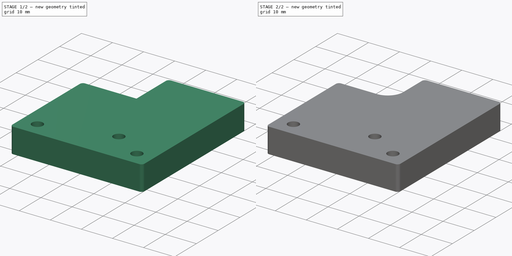
[diagram: build sequence overview — one tinted view per stage of 2, left to right]
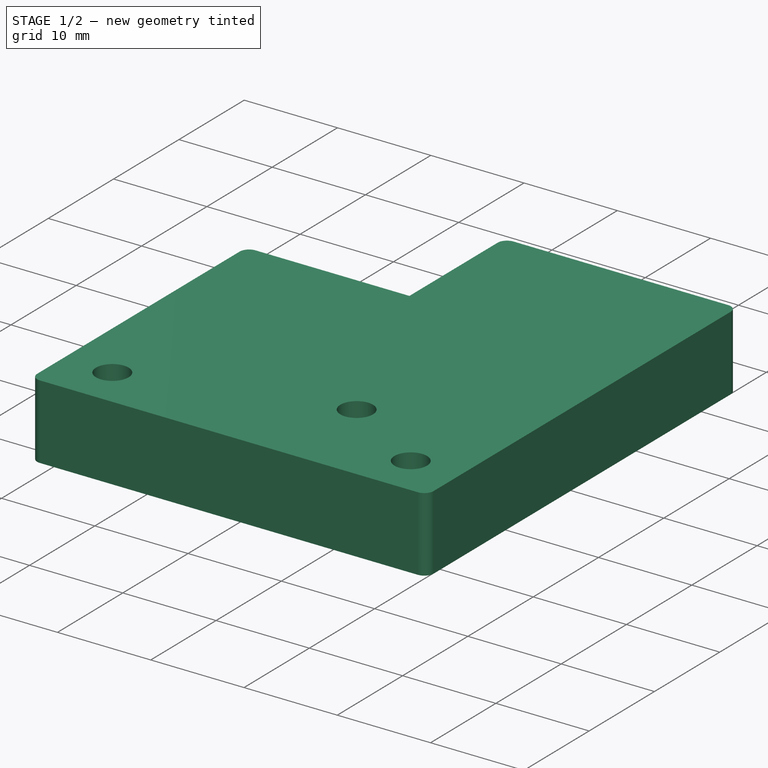
[diagram: stage 1 of 2 — iso view after this stage's code; geometry added in this stage tinted green]
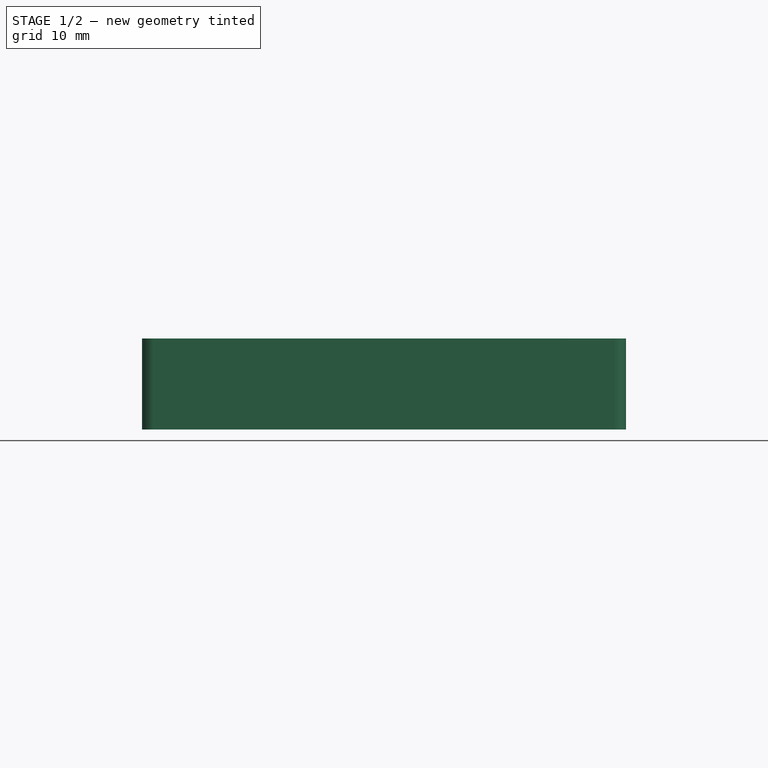
[diagram: stage 1 of 2 — front view after this stage's code; geometry added in this stage tinted green]
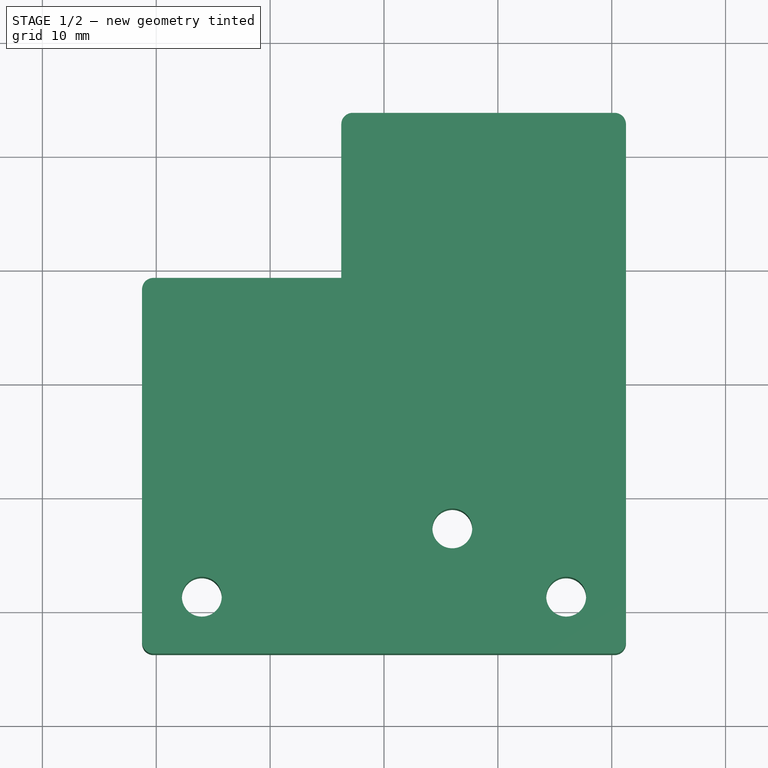
[diagram: stage 1 of 2 — top view after this stage's code; geometry added in this stage tinted green]
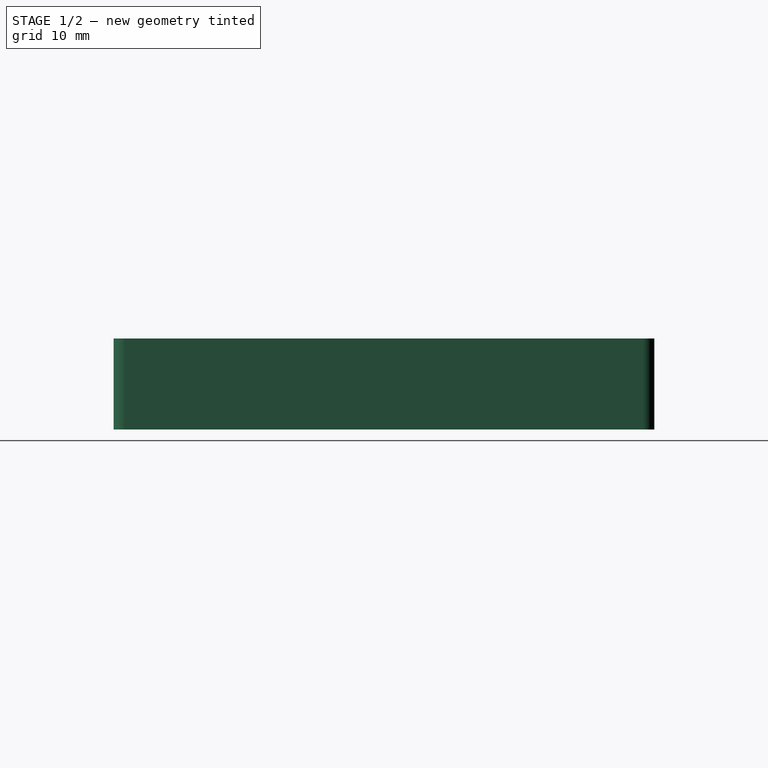
[diagram: stage 1 of 2 — right view after this stage's code; geometry added in this stage tinted green]
FCSTD DOCUMENT  (FreeCAD 0.14R3310 (Git))
Label: 86. TAPA EXTRUSER (DISIPADOR)
License: CC-BY 3.0
LicenseURL: http://creativecommons.org/licenses/by/3.0/
objects: PartDesign::Fillet×2, Sketcher::SketchObject×1, PartDesign::Pad×1
note: 5 computed .brp shape members not serialized (recipe doc carries the construction recipe); baked Part::Feature solids carry a one-line shape summary decoded from their .brp

FEATURE [Sketcher::SketchObject] Sketch
  sketch-geometry (11):
    g0: LineSegment [constr] StartX=-21.25 StartY=23.75 StartZ=0 EndX=21.25 EndY=23.75 EndZ=0
    g1: LineSegment StartX=21.25 StartY=23.75 StartZ=0 EndX=21.25 EndY=-23.75 EndZ=0
    g2: LineSegment StartX=21.25 StartY=-23.75 StartZ=0 EndX=-21.25 EndY=-23.75 EndZ=0
    g3: LineSegment [constr] StartX=-21.25 StartY=-23.75 StartZ=0 EndX=-21.25 EndY=23.75 EndZ=0
    g4: LineSegment StartX=-3.75 StartY=23.75 StartZ=0 EndX=-3.75 EndY=9.25 EndZ=0
    g5: LineSegment StartX=-21.25 StartY=9.25 StartZ=0 EndX=-3.75 EndY=9.25 EndZ=0
    g6: LineSegment StartX=-3.75 StartY=23.75 StartZ=0 EndX=21.25 EndY=23.75 EndZ=0
    g7: LineSegment StartX=-21.25 StartY=9.25 StartZ=0 EndX=-21.25 EndY=-23.75 EndZ=0
    g8: Circle CenterX=-16 CenterY=-18.75 CenterZ=0 NormalX=0 NormalY=0 NormalZ=1 Radius=1.75
    g9: Circle CenterX=16 CenterY=-18.75 CenterZ=0 NormalX=0 NormalY=0 NormalZ=1 Radius=1.75
    g10: Circle CenterX=6 CenterY=-12.75 CenterZ=0 NormalX=0 NormalY=0 NormalZ=1 Radius=1.75
  constraints (30):
    c: Coincident(g0,g1)
    c: Coincident(g1,g2)
    c: Coincident(g2,g3)
    c: Coincident(g3,g0)
    c: Horizontal(g0)
    c: Horizontal(g2)
    c: Vertical(g1)
    c: Vertical(g3)
    c: Symmetric(g1,g0,g-1)
    c: Distance(g0) = 42.5
    c: Distance(g1) = 47.5
    c: PointOnObject(g4,g0)
    c: Vertical(g4)
    c: PointOnObject(g5,g3)
    c: Coincident(g5,g4)
    c: Horizontal(g5)
    c: Distance(g5,g2) = 33
    c: Distance(g4,g1) = 25
    c: Coincident(g6,g4)
    c: Coincident(g6,g0)
    c: Coincident(g7,g5)
    c: Coincident(g7,g2)
    c: Symmetric(g8,g9,g-2)
    c: Equal(g9,g8)
    c: Radius(g8) = 1.75
    c: Distance(g8,g9) = 32
    c: Distance(g9,g2) = 5
    c: Equal(g10,g9)
    c: DistanceX(g-2,g10) = 6
    c: Distance(g10,g2) = 11
FEATURE [PartDesign::Pad] Pad
  Length = 8
  Length2 = 100
  Sketch = -> Sketch
  Type = 0
FEATURE [PartDesign::Fillet] Fillet
  Base = -> Pad [Edge1,Edge11,Edge2,Edge5,Edge8]
  Radius = 1
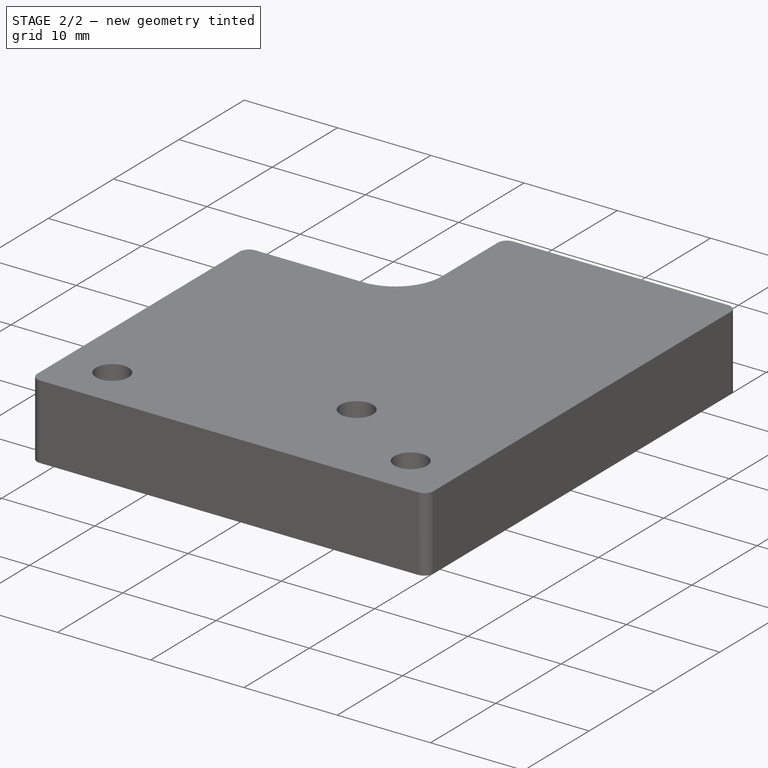
[diagram: stage 2 of 2 — iso view after this stage's code; geometry added in this stage tinted green]
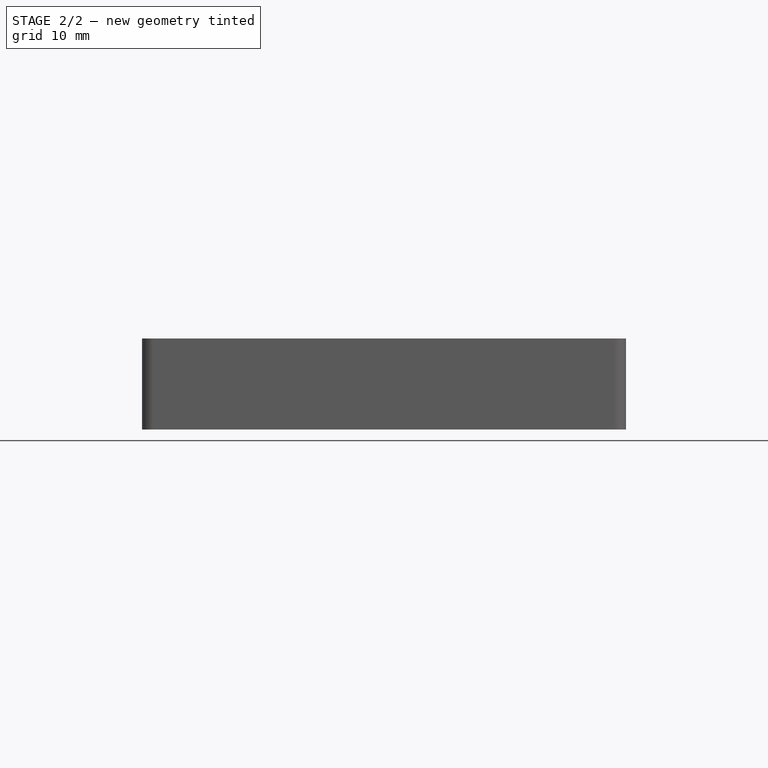
[diagram: stage 2 of 2 — front view after this stage's code; geometry added in this stage tinted green]
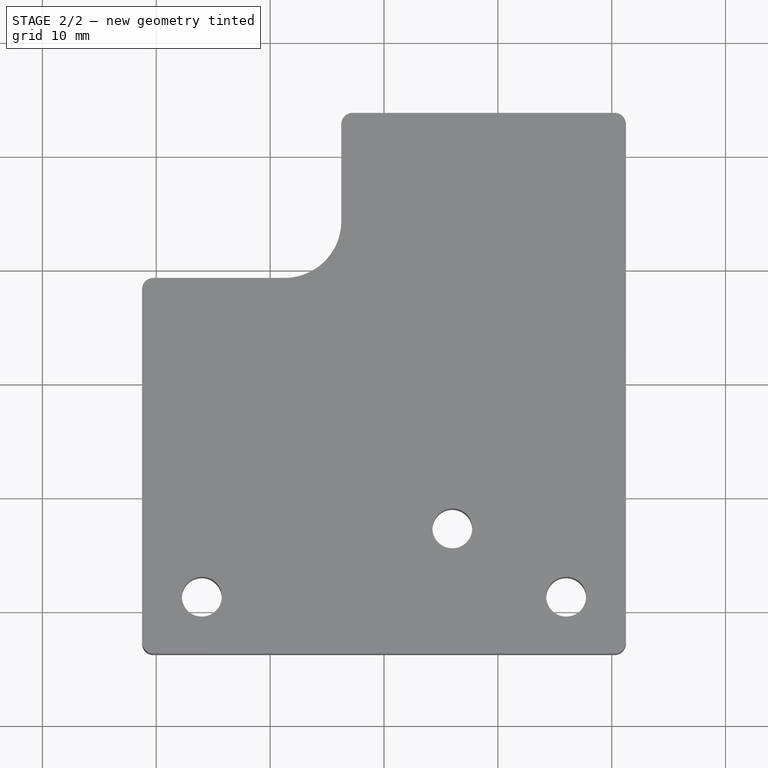
[diagram: stage 2 of 2 — top view after this stage's code; geometry added in this stage tinted green]
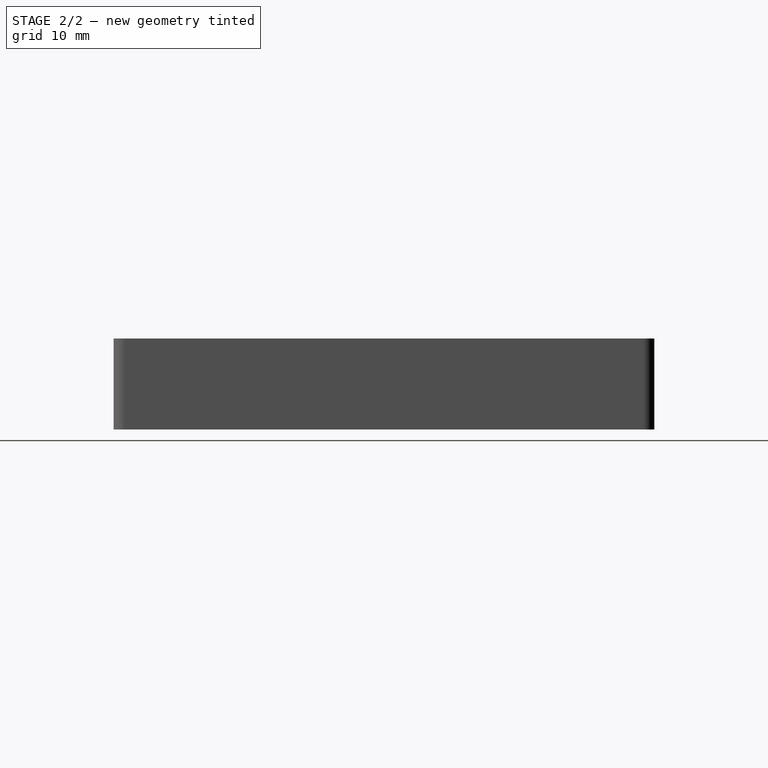
[diagram: stage 2 of 2 — right view after this stage's code; geometry added in this stage tinted green]
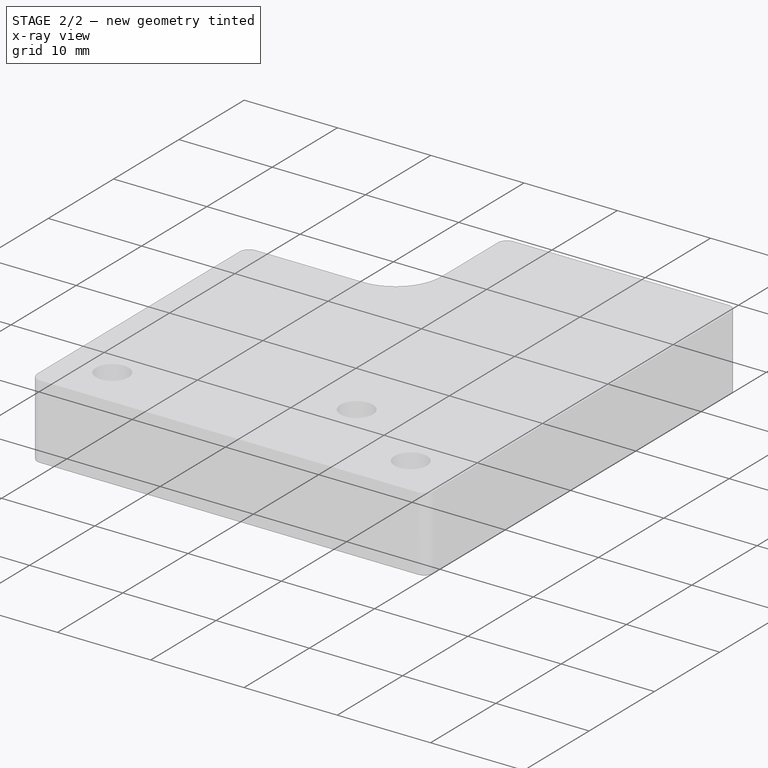
[diagram: stage 2 of 2 — x-ray composite at the iso view; earlier geometry ghosted, this stage's added geometry solid]
FEATURE [PartDesign::Fillet] Fillet001
  Base = -> Fillet [Edge33]
  Radius = 5
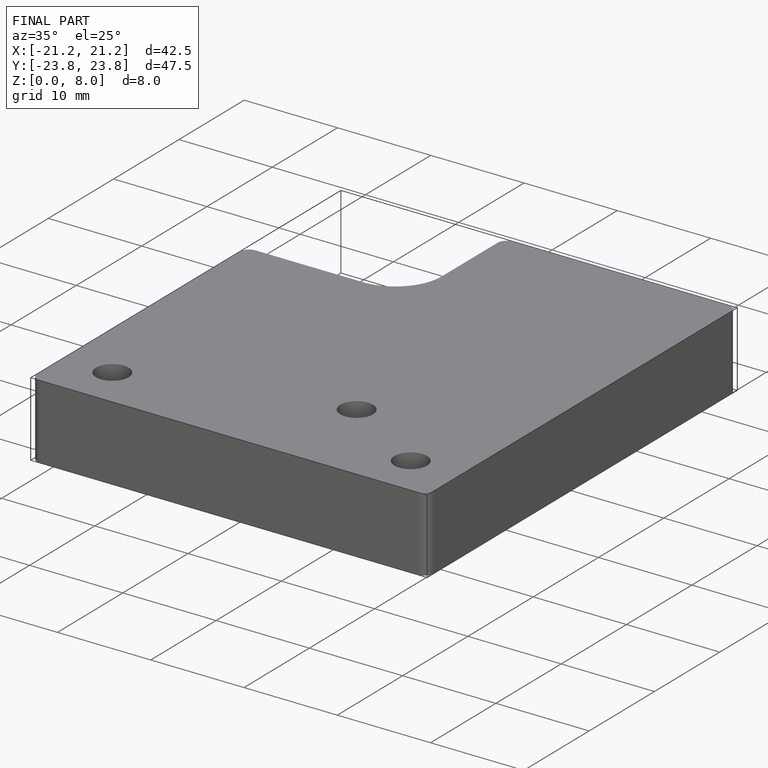
[diagram: finished part — iso view with bounding-box wireframe]
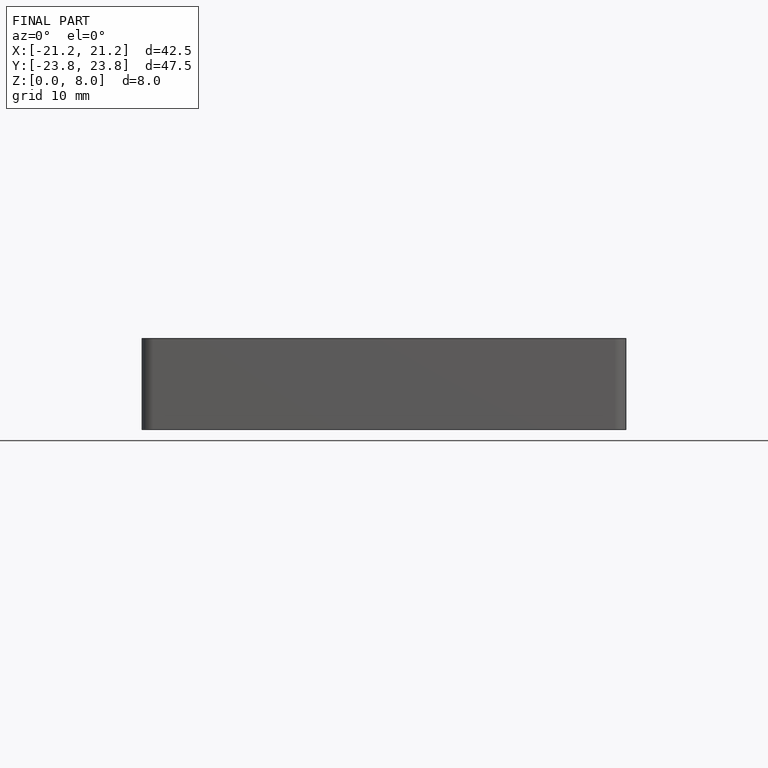
[diagram: finished part — front view with bounding-box wireframe]
